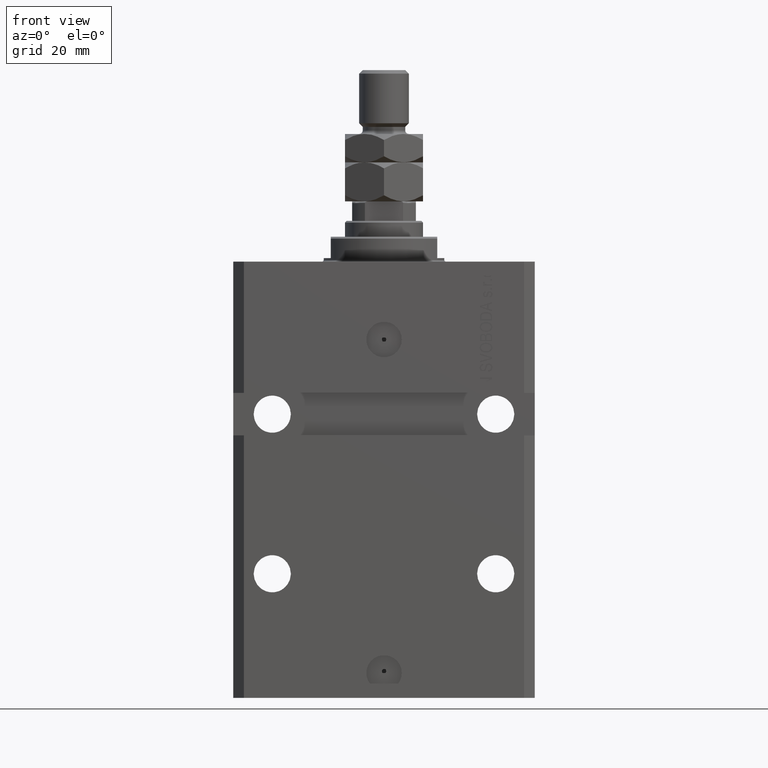
[diagram: clean part render]
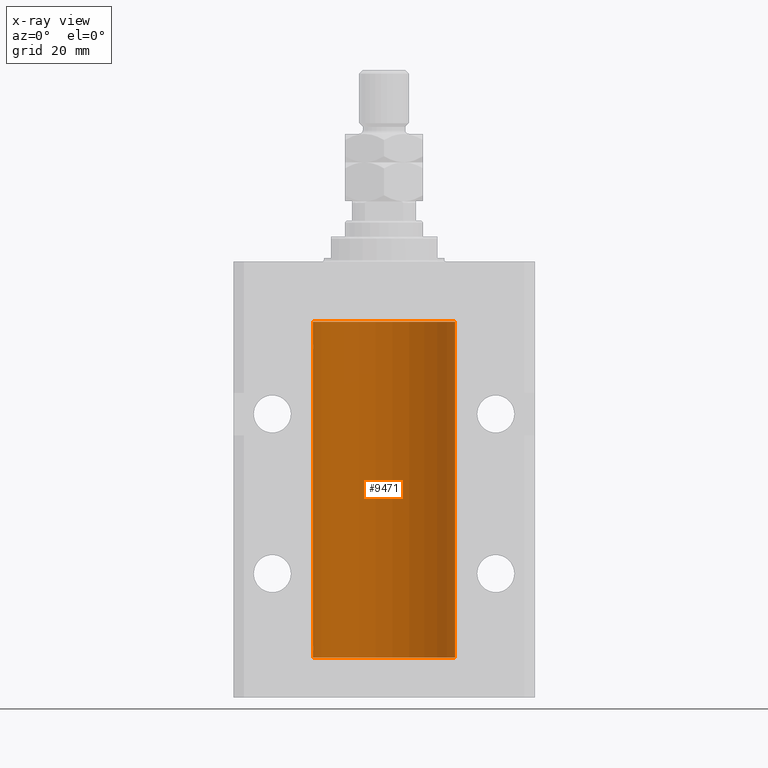
[diagram: x-ray — body ghosted, one internal face saturated and labeled with its STEP entity id]
A machine part, front view, then the same camera in x-ray: the body is ghosted and one INTERNAL B-rep face — a face not visible from any outside direction — is saturated and labeled: STEP entity #9471.
In plain terms, the highlighted cylindrical surface (partial cylindrical patch) has radius 20 mm, axis along (0, 0, 1).
Its self-contained STEP definition (entity closure, byte-faithful):
#326 = CARTESIAN_POINT ( 'NONE',  ( -20.00000000000010303, 3.580159278407742946E-13, -24.62500000000332889 ) ) ;
#457 = LINE ( 'NONE', #25606, #36799 ) ;
#501 = CARTESIAN_POINT ( 'NONE',  ( -20.00000000000000355, 0.1631688615953337806, -109.6249999999998721 ) ) ;
#733 = CARTESIAN_POINT ( 'NONE',  ( -19.99023380173165876, 0.6249420416828411762, -108.8367079305639322 ) ) ;
#765 = CARTESIAN_POINT ( 'NONE',  ( 20.00000000000000000, 0.000000000000000000, -111.5999999999999943 ) ) ;
#1054 = CARTESIAN_POINT ( 'NONE',  ( -20.00000000000000000, 2.449293598294706513E-15, -111.5999999999999943 ) ) ;
#1231 = CARTESIAN_POINT ( 'NONE',  ( 20.00000000000000000, 0.000000000000000000, -17.00000000000000000 ) ) ;
#2038 = VERTEX_POINT ( 'NONE', #1231 ) ;
#2214 = ORIENTED_EDGE ( 'NONE', *, *, #35411, .F. ) ;
#2657 = CARTESIAN_POINT ( 'NONE',  ( -20.00000000000010303, 3.580159290815452135E-13, -109.6250000000033253 ) ) ;
#4144 = CARTESIAN_POINT ( 'NONE',  ( -19.99769349528941120, 0.3253804398728645242, -24.55855820727680339 ) ) ;
#4686 = VECTOR ( 'NONE', #44409, 1000.000000000000000 ) ;
#5030 = CARTESIAN_POINT ( 'NONE',  ( -19.99947377218718358, 0.1636439183262759223, -108.3912636400465459 ) ) ;
#5538 = EDGE_CURVE ( 'NONE', #36721, #9000, #30879, .T. ) ;
#5925 = AXIS2_PLACEMENT_3D ( 'NONE', #31320, #42242, #13989 ) ;
#6186 = DIRECTION ( 'NONE',  ( 0.000000000000000000, 0.000000000000000000, 1.000000000000000000 ) ) ;
#7696 = CARTESIAN_POINT ( 'NONE',  ( -19.99253506710754991, 0.5587120480776751608, -24.32511620830248589 ) ) ;
#7809 = DIRECTION ( 'NONE',  ( -0.000000000000000000, -0.000000000000000000, 1.000000000000000000 ) ) ;
#8011 = ORIENTED_EDGE ( 'NONE', *, *, #26614, .F. ) ;
#8568 = CARTESIAN_POINT ( 'NONE',  ( -20.00000000000000000, 2.449293598294706513E-15, -111.5999999999999943 ) ) ;
#8682 = VECTOR ( 'NONE', #18443, 1000.000000000000000 ) ;
#8809 = LINE ( 'NONE', #8568, #4686 ) ;
#9000 = VERTEX_POINT ( 'NONE', #326 ) ;
#9261 = ORIENTED_EDGE ( 'NONE', *, *, #26256, .F. ) ;
#9471 = ADVANCED_FACE ( 'NONE', ( #39141 ), #38202, .F. ) ;
#9479 = EDGE_CURVE ( 'NONE', #2038, #24710, #26367, .T. ) ;
#10538 = CARTESIAN_POINT ( 'NONE',  ( 0.000000000000000000, 0.000000000000000000, -111.5999999999999943 ) ) ;
#11181 = CARTESIAN_POINT ( 'NONE',  ( -19.99766197842594906, 0.3150331617867563327, -108.4540207010250299 ) ) ;
#11247 = CARTESIAN_POINT ( 'NONE',  ( -19.99947377218718714, 0.1636439183262877461, -23.39126364004656011 ) ) ;
#12030 = CARTESIAN_POINT ( 'NONE',  ( -20.00000000000000000, -2.867584836844214272E-15, -23.37500000000000000 ) ) ;
#13989 = DIRECTION ( 'NONE',  ( 1.000000000000000000, 0.000000000000000000, 0.000000000000000000 ) ) ;
#14563 = CARTESIAN_POINT ( 'NONE',  ( -19.99023018003212471, 0.6250578794725500931, -24.16284809704970371 ) ) ;
#15255 = VERTEX_POINT ( 'NONE', #41571 ) ;
#16591 = ORIENTED_EDGE ( 'NONE', *, *, #41175, .F. ) ;
#16665 = VERTEX_POINT ( 'NONE', #1054 ) ;
#17080 = DIRECTION ( 'NONE',  ( 1.000000000000000000, 0.000000000000000000, 0.000000000000000000 ) ) ;
#17759 = VERTEX_POINT ( 'NONE', #2657 ) ;
#18443 = DIRECTION ( 'NONE',  ( -0.000000000000000000, -0.000000000000000000, 1.000000000000000000 ) ) ;
#18994 = CARTESIAN_POINT ( 'NONE',  ( -19.99769349528941476, 0.3253804398728720182, -109.5585582072768318 ) ) ;
#19254 = ORIENTED_EDGE ( 'NONE', *, *, #29391, .T. ) ;
#20759 = CIRCLE ( 'NONE', #26836, 20.00000000000000000 ) ;
#21691 = CARTESIAN_POINT ( 'NONE',  ( -19.99638934703457593, 0.3843678041337688644, -23.50046362978100944 ) ) ;
#22624 = CARTESIAN_POINT ( 'NONE',  ( -19.99766197842594906, 0.3150331617867667688, -23.45402070102505476 ) ) ;
#23809 = CARTESIAN_POINT ( 'NONE',  ( -20.00000000000000000, 0.1631688615953320320, -24.62499999999985434 ) ) ;
#24710 = VERTEX_POINT ( 'NONE', #35975 ) ;
#25606 = CARTESIAN_POINT ( 'NONE',  ( -20.00000000000000000, 2.449293598294706513E-15, -111.5999999999999943 ) ) ;
#25891 = CARTESIAN_POINT ( 'NONE',  ( -20.00000000000010303, 3.580159290815452135E-13, -109.6250000000033253 ) ) ;
#26256 = EDGE_CURVE ( 'NONE', #15255, #9000, #8809, .T. ) ;
#26367 = CIRCLE ( 'NONE', #42287, 20.00000000000000000 ) ;
#26529 = LINE ( 'NONE', #40518, #8682 ) ;
#26604 = CARTESIAN_POINT ( 'NONE',  ( -19.99638934703457593, 0.3843678041337614260, -108.5004636297810094 ) ) ;
#26614 = EDGE_CURVE ( 'NONE', #36721, #24710, #36496, .T. ) ;
#26666 = ORIENTED_EDGE ( 'NONE', *, *, #5538, .T. ) ;
#26836 = AXIS2_PLACEMENT_3D ( 'NONE', #10538, #35916, #39927 ) ;
#28813 = CARTESIAN_POINT ( 'NONE',  ( -19.99023380173166231, 0.6249420416828462832, -23.83670793056396064 ) ) ;
#29391 = EDGE_CURVE ( 'NONE', #15255, #17759, #46111, .T. ) ;
#29438 = CARTESIAN_POINT ( 'NONE',  ( -19.99256581701871838, 0.5573276956901952461, -108.6734856577094916 ) ) ;
#30879 = B_SPLINE_CURVE_WITH_KNOTS ( 'NONE', 3,
 ( #43768, #36627, #11247, #22624, #21691, #36381, #28813, #14563, #7696, #4144, #23809, #33541 ),
 .UNSPECIFIED., .F., .F.,
 ( 4, 2, 2, 2, 2, 4 ),
 ( 5.848927291235706941E-19, 0.0002442693137305304075, 0.0004885386274610601645, 0.0009770772549221123059, 0.001465615882383164339, 0.001954154509844215938 ),
 .UNSPECIFIED. ) ;
#31320 = CARTESIAN_POINT ( 'NONE',  ( 0.000000000000000000, 0.000000000000000000, -111.5999999999999943 ) ) ;
#31844 = CARTESIAN_POINT ( 'NONE',  ( -20.00000000000000000, -1.494965790691426527E-14, -108.3750000000000000 ) ) ;
#32039 = ORIENTED_EDGE ( 'NONE', *, *, #9479, .T. ) ;
#32392 = EDGE_CURVE ( 'NONE', #37442, #2038, #26529, .T. ) ;
#32466 = ORIENTED_EDGE ( 'NONE', *, *, #32392, .T. ) ;
#33541 = CARTESIAN_POINT ( 'NONE',  ( -20.00000000000010303, 3.580159278407742946E-13, -24.62500000000332889 ) ) ;
#35411 = EDGE_CURVE ( 'NONE', #16665, #17759, #457, .T. ) ;
#35916 = DIRECTION ( 'NONE',  ( 0.000000000000000000, 0.000000000000000000, 1.000000000000000000 ) ) ;
#35975 = CARTESIAN_POINT ( 'NONE',  ( -20.00000000000000000, 2.449293598294706513E-15, -17.00000000000000000 ) ) ;
#36098 = CARTESIAN_POINT ( 'NONE',  ( -19.99999999999999289, 0.08259581631025748882, -108.3749999999999716 ) ) ;
#36381 = CARTESIAN_POINT ( 'NONE',  ( -19.99256581701871482, 0.5573276956902001311, -23.67348565770948809 ) ) ;
#36496 = LINE ( 'NONE', #39829, #45638 ) ;
#36627 = CARTESIAN_POINT ( 'NONE',  ( -19.99999999999999645, 0.08259581631026780002, -23.37500000000000000 ) ) ;
#36721 = VERTEX_POINT ( 'NONE', #12030 ) ;
#36799 = VECTOR ( 'NONE', #40072, 1000.000000000000000 ) ;
#36801 = CARTESIAN_POINT ( 'NONE',  ( -19.99253506710754991, 0.5587120480776772702, -109.3251162083024894 ) ) ;
#37261 = CARTESIAN_POINT ( 'NONE',  ( -19.99023018003212471, 0.6250578794725484277, -109.1628480970496895 ) ) ;
#37442 = VERTEX_POINT ( 'NONE', #765 ) ;
#38202 = CYLINDRICAL_SURFACE ( 'NONE', #5925, 20.00000000000000000 ) ;
#38908 = CARTESIAN_POINT ( 'NONE',  ( 0.000000000000000000, 0.000000000000000000, -17.00000000000000000 ) ) ;
#39141 = FACE_OUTER_BOUND ( 'NONE', #46526, .T. ) ;
#39829 = CARTESIAN_POINT ( 'NONE',  ( -20.00000000000000000, 2.449293598294706513E-15, -111.5999999999999943 ) ) ;
#39927 = DIRECTION ( 'NONE',  ( 1.000000000000000000, 0.000000000000000000, 0.000000000000000000 ) ) ;
#40072 = DIRECTION ( 'NONE',  ( -0.000000000000000000, -0.000000000000000000, 1.000000000000000000 ) ) ;
#40518 = CARTESIAN_POINT ( 'NONE',  ( 20.00000000000000000, 0.000000000000000000, -111.5999999999999943 ) ) ;
#41175 = EDGE_CURVE ( 'NONE', #37442, #16665, #20759, .T. ) ;
#41571 = CARTESIAN_POINT ( 'NONE',  ( -20.00000000000000000, -1.494965790691426527E-14, -108.3750000000000000 ) ) ;
#42242 = DIRECTION ( 'NONE',  ( -0.000000000000000000, -0.000000000000000000, 1.000000000000000000 ) ) ;
#42287 = AXIS2_PLACEMENT_3D ( 'NONE', #38908, #6186, #17080 ) ;
#43768 = CARTESIAN_POINT ( 'NONE',  ( -20.00000000000000000, -2.867584836844214272E-15, -23.37500000000000000 ) ) ;
#44409 = DIRECTION ( 'NONE',  ( -0.000000000000000000, -0.000000000000000000, 1.000000000000000000 ) ) ;
#45638 = VECTOR ( 'NONE', #7809, 1000.000000000000000 ) ;
#46111 = B_SPLINE_CURVE_WITH_KNOTS ( 'NONE', 3,
 ( #31844, #36098, #5030, #11181, #26604, #29438, #733, #37261, #36801, #18994, #501, #25891 ),
 .UNSPECIFIED., .F., .F.,
 ( 4, 2, 2, 2, 2, 4 ),
 ( 1.555867690894744095E-18, 0.0002442693137305176681, 0.0004885386274610337099, 0.0009770772549220949586, 0.001465615882383156099, 0.001954154509844217673 ),
 .UNSPECIFIED. ) ;
#46526 = EDGE_LOOP ( 'NONE', ( #2214, #16591, #32466, #32039, #8011, #26666, #9261, #19254 ) ) ;